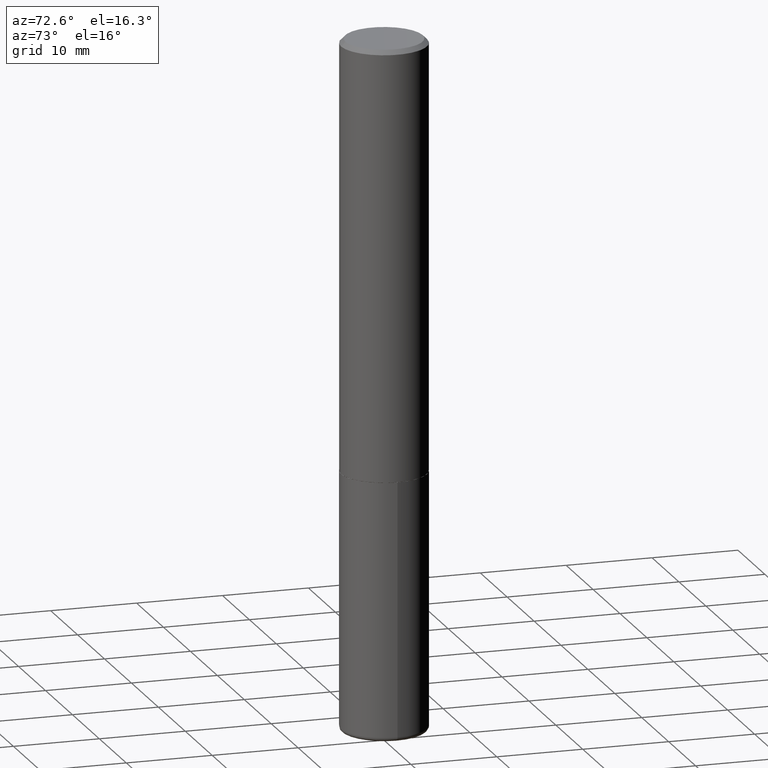
[diagram: clean part render]
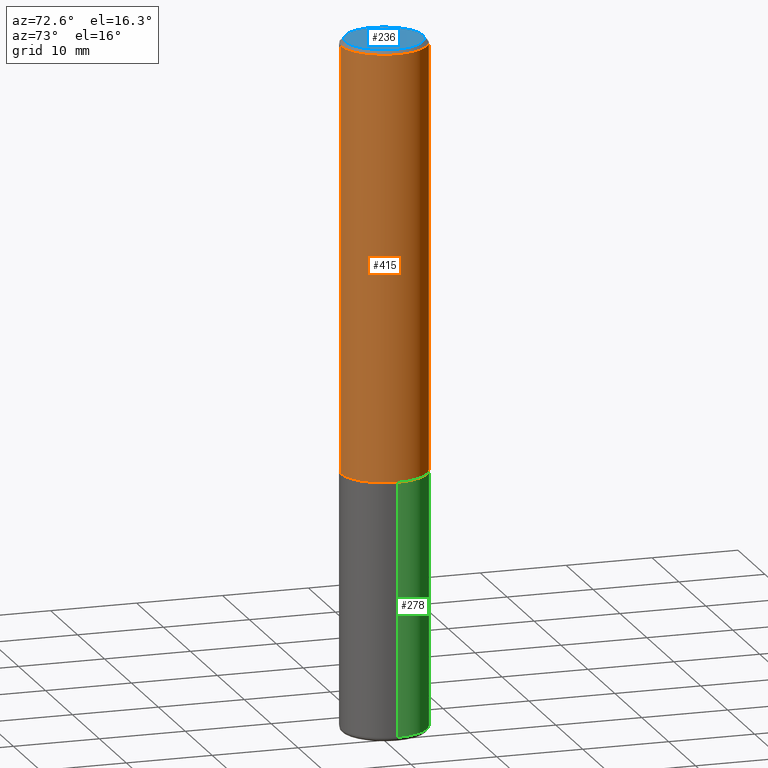
[diagram: same view with three faces highlighted in distinct colors, each labeled with its STEP entity id]
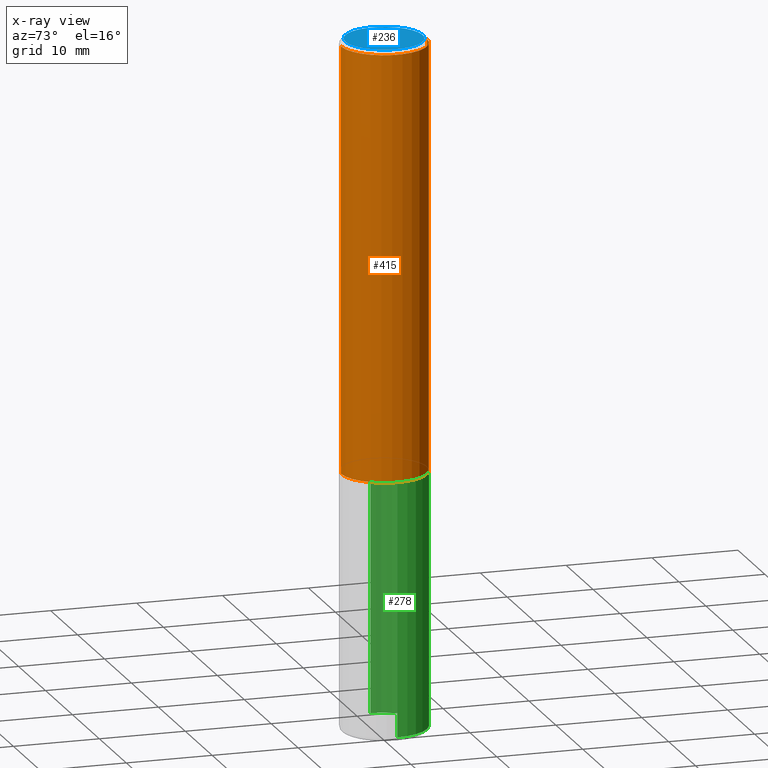
[diagram: x-ray of the same camera — body ghosted, the three highlighted faces saturated]
A machine part, auxiliary view with three faces highlighted in distinct colors.
The next image is the same camera in x-ray (body ghosted, the three faces saturated) — at least one of them is partly hidden behind the body in this view.
Their STEP definitions:

[orange] entity #415 — the highlighted cylindrical surface (partial cylindrical patch) has radius 5 mm, axis along (-0, 0, 1).
#23 = EDGE_LOOP ( 'NONE', ( #84, #398, #314, #44 ) ) ;
#36 = VERTEX_POINT ( 'NONE', #138 ) ;
#39 = DIRECTION ( 'NONE',  ( -2.445268841296851437E-29, 3.491767699944464940E-15, 1.000000000000000000 ) ) ;
#43 = FACE_OUTER_BOUND ( 'NONE', #23, .T. ) ;
#44 = ORIENTED_EDGE ( 'NONE', *, *, #93, .F. ) ;
#47 = CIRCLE ( 'NONE', #319, 0.1968500000000002470 ) ;
#55 = CARTESIAN_POINT ( 'NONE',  ( 1.398703375343782440E-15, 0.1968499999999933914, -1.967500000000000471 ) ) ;
#83 = DIRECTION ( 'NONE',  ( -6.982962677686265922E-15, -1.000000000000000000, 3.491767699944464545E-15 ) ) ;
#84 = ORIENTED_EDGE ( 'NONE', *, *, #262, .T. ) ;
#93 = EDGE_CURVE ( 'NONE', #36, #310, #239, .T. ) ;
#101 = VERTEX_POINT ( 'NONE', #121 ) ;
#117 = VERTEX_POINT ( 'NONE', #55 ) ;
#121 = CARTESIAN_POINT ( 'NONE',  ( 1.374596203102542200E-15, 0.1968499999999999694, -0.02000000000000072900 ) ) ;
#133 = DIRECTION ( 'NONE',  ( -6.982962677686265133E-15, -1.000000000000000000, 3.491137977679279029E-15 ) ) ;
#138 = CARTESIAN_POINT ( 'NONE',  ( -1.374596203102495065E-15, -0.1968500000000071026, -1.967499999999998916 ) ) ;
#146 = CARTESIAN_POINT ( 'NONE',  ( 0.000000000000000000, 0.000000000000000000, 0.000000000000000000 ) ) ;
#150 = VECTOR ( 'NONE', #39, 39.37007874015748143 ) ;
#158 = DIRECTION ( 'NONE',  ( -6.982962677686265922E-15, -1.000000000000000000, 4.163344669033670112E-15 ) ) ;
#175 = CYLINDRICAL_SURFACE ( 'NONE', #225, 0.1968500000000001360 ) ;
#183 = EDGE_CURVE ( 'NONE', #117, #101, #301, .T. ) ;
#186 = DIRECTION ( 'NONE',  ( -2.445268841296851437E-29, 3.491767699944464545E-15, 1.000000000000000000 ) ) ;
#194 = CIRCLE ( 'NONE', #248, 0.1968500000000000527 ) ;
#202 = DIRECTION ( 'NONE',  ( -2.445268841296851437E-29, 3.491767699944464545E-15, 1.000000000000000000 ) ) ;
#217 = CARTESIAN_POINT ( 'NONE',  ( -1.350489030861325626E-15, -0.1968500000000001082, -0.01999999999999935510 ) ) ;
#225 = AXIS2_PLACEMENT_3D ( 'NONE', #146, #305, #83 ) ;
#239 = LINE ( 'NONE', #326, #150 ) ;
#248 = AXIS2_PLACEMENT_3D ( 'NONE', #279, #186, #133 ) ;
#262 = EDGE_CURVE ( 'NONE', #36, #117, #47, .T. ) ;
#279 = CARTESIAN_POINT ( 'NONE',  ( 4.890537682593712927E-31, -6.983535399888942699E-17, -0.02000000000000004205 ) ) ;
#297 = CARTESIAN_POINT ( 'NONE',  ( 1.398703375343757985E-15, 0.1968500000000001360, -6.873544717340683232E-16 ) ) ;
#301 = LINE ( 'NONE', #297, #312 ) ;
#305 = DIRECTION ( 'NONE',  ( -2.445268841296851437E-29, 3.491767699944464545E-15, 1.000000000000000000 ) ) ;
#310 = VERTEX_POINT ( 'NONE', #217 ) ;
#312 = VECTOR ( 'NONE', #394, 39.37007874015748143 ) ;
#314 = ORIENTED_EDGE ( 'NONE', *, *, #327, .F. ) ;
#319 = AXIS2_PLACEMENT_3D ( 'NONE', #338, #202, #158 ) ;
#326 = CARTESIAN_POINT ( 'NONE',  ( -1.374596203102542397E-15, -0.1968500000000001360, 6.873544717340683232E-16 ) ) ;
#327 = EDGE_CURVE ( 'NONE', #310, #101, #194, .T. ) ;
#338 = CARTESIAN_POINT ( 'NONE',  ( 4.811066445251554069E-29, -6.870052949640732965E-15, -1.967499999999999805 ) ) ;
#394 = DIRECTION ( 'NONE',  ( -2.445268841296851437E-29, 3.491767699944464940E-15, 1.000000000000000000 ) ) ;
#398 = ORIENTED_EDGE ( 'NONE', *, *, #183, .T. ) ;
#415 = ADVANCED_FACE ( 'NONE', ( #43 ), #175, .T. ) ;

[blue] entity #236 — the highlighted planar face has unit normal (0, -0, -1).
#3 = DIRECTION ( 'NONE',  ( -6.982962677686265922E-15, -1.000000000000000000, 3.491767699944464940E-15 ) ) ;
#45 = EDGE_CURVE ( 'NONE', #157, #170, #81, .T. ) ;
#78 = ORIENTED_EDGE ( 'NONE', *, *, #132, .T. ) ;
#81 = CIRCLE ( 'NONE', #134, 0.1768499999999998407 ) ;
#94 = CARTESIAN_POINT ( 'NONE',  ( -5.428821863719041386E-45, 7.752188435212310874E-31, 2.220132924459896583E-16 ) ) ;
#99 = DIRECTION ( 'NONE',  ( -2.445268841296851437E-29, 3.491767699944464545E-15, 1.000000000000000000 ) ) ;
#113 = AXIS2_PLACEMENT_3D ( 'NONE', #115, #374, #294 ) ;
#115 = CARTESIAN_POINT ( 'NONE',  ( 1.234936949548815012E-15, 0.1768499999999998407, -5.065124715121833152E-16 ) ) ;
#125 = CIRCLE ( 'NONE', #361, 0.1768499999999998407 ) ;
#132 = EDGE_CURVE ( 'NONE', #170, #157, #125, .T. ) ;
#134 = AXIS2_PLACEMENT_3D ( 'NONE', #166, #363, #3 ) ;
#157 = VERTEX_POINT ( 'NONE', #416 ) ;
#166 = CARTESIAN_POINT ( 'NONE',  ( -5.428821863719041386E-45, 7.752188435212310874E-31, 2.220132924459896583E-16 ) ) ;
#170 = VERTEX_POINT ( 'NONE', #171 ) ;
#171 = CARTESIAN_POINT ( 'NONE',  ( -1.281884050883609900E-15, -0.1768499999999998407, 8.395324101811677409E-16 ) ) ;
#236 = ADVANCED_FACE ( 'NONE', ( #264 ), #360, .F. ) ;
#257 = DIRECTION ( 'NONE',  ( -6.982962677686265922E-15, -1.000000000000000000, 3.491767699944464940E-15 ) ) ;
#261 = ORIENTED_EDGE ( 'NONE', *, *, #45, .T. ) ;
#264 = FACE_OUTER_BOUND ( 'NONE', #269, .T. ) ;
#269 = EDGE_LOOP ( 'NONE', ( #261, #78 ) ) ;
#294 = DIRECTION ( 'NONE',  ( 6.982962677686265922E-15, 1.000000000000000000, -3.491767699944464940E-15 ) ) ;
#360 = PLANE ( 'NONE',  #113 ) ;
#361 = AXIS2_PLACEMENT_3D ( 'NONE', #94, #99, #257 ) ;
#363 = DIRECTION ( 'NONE',  ( -2.445268841296851437E-29, 3.491767699944464545E-15, 1.000000000000000000 ) ) ;
#374 = DIRECTION ( 'NONE',  ( 2.445268841296850876E-29, -3.491767699944464940E-15, -1.000000000000000000 ) ) ;
#416 = CARTESIAN_POINT ( 'NONE',  ( 1.304766576325678705E-15, 0.1768499999999998407, -3.955058252891884244E-16 ) ) ;

[green] entity #278 — the highlighted cylindrical surface (partial cylindrical patch) has radius 5 mm, axis along (-0, 0, 1).
#21 = VECTOR ( 'NONE', #109, 39.37007874015748143 ) ;
#27 = EDGE_CURVE ( 'NONE', #190, #381, #357, .T. ) ;
#30 = CARTESIAN_POINT ( 'NONE',  ( 0.000000000000000000, 0.000000000000000000, 0.000000000000000000 ) ) ;
#34 = CIRCLE ( 'NONE', #288, 0.1968500000000000250 ) ;
#41 = ORIENTED_EDGE ( 'NONE', *, *, #184, .F. ) ;
#56 = VERTEX_POINT ( 'NONE', #298 ) ;
#63 = FACE_OUTER_BOUND ( 'NONE', #259, .T. ) ;
#71 = DIRECTION ( 'NONE',  ( 1.000000000000000000, -6.982962677686266711E-15, 4.876176775795935793E-29 ) ) ;
#75 = DIRECTION ( 'NONE',  ( 1.000000000000000000, -6.982962677686267499E-15, 0.000000000000000000 ) ) ;
#89 = AXIS2_PLACEMENT_3D ( 'NONE', #30, #137, #71 ) ;
#108 = LINE ( 'NONE', #388, #253 ) ;
#109 = DIRECTION ( 'NONE',  ( -2.445468806185136877E-29, 3.491481338843145188E-15, 1.000000000000000000 ) ) ;
#112 = CIRCLE ( 'NONE', #193, 0.1968499999999999694 ) ;
#137 = DIRECTION ( 'NONE',  ( -2.445468806185136597E-29, 3.491481338843145583E-15, 1.000000000000000000 ) ) ;
#139 = ORIENTED_EDGE ( 'NONE', *, *, #27, .T. ) ;
#148 = EDGE_CURVE ( 'NONE', #56, #190, #112, .T. ) ;
#182 = CARTESIAN_POINT ( 'NONE',  ( 0.1968500000000000250, -8.247577218615273316E-15, -1.968499999999999694 ) ) ;
#184 = EDGE_CURVE ( 'NONE', #56, #325, #108, .T. ) ;
#190 = VERTEX_POINT ( 'NONE', #233 ) ;
#191 = DIRECTION ( 'NONE',  ( 1.000000000000000000, -6.982962677686269866E-15, 0.000000000000000000 ) ) ;
#193 = AXIS2_PLACEMENT_3D ( 'NONE', #351, #221, #191 ) ;
#209 = CARTESIAN_POINT ( 'NONE',  ( -0.1968499999999999694, 1.398703375343756999E-15, -9.682923725166782276E-30 ) ) ;
#221 = DIRECTION ( 'NONE',  ( -2.445468806185136597E-29, 3.491481338843145583E-15, 1.000000000000000000 ) ) ;
#222 = EDGE_CURVE ( 'NONE', #325, #381, #34, .T. ) ;
#229 = CARTESIAN_POINT ( 'NONE',  ( -0.1968500000000000250, -7.501780853635190206E-15, -1.968499999999999694 ) ) ;
#233 = CARTESIAN_POINT ( 'NONE',  ( -0.1968499999999999417, -9.529284067101404126E-15, -3.129900000000000571 ) ) ;
#253 = VECTOR ( 'NONE', #392, 39.37007874015748143 ) ;
#259 = EDGE_LOOP ( 'NONE', ( #336, #139, #316, #41 ) ) ;
#272 = CARTESIAN_POINT ( 'NONE',  ( 4.813905344975440714E-29, -6.872981015512730918E-15, -1.968499999999999694 ) ) ;
#278 = ADVANCED_FACE ( 'NONE', ( #63 ), #321, .T. ) ;
#288 = AXIS2_PLACEMENT_3D ( 'NONE', #272, #323, #75 ) ;
#298 = CARTESIAN_POINT ( 'NONE',  ( 0.1968499999999999417, -1.230258364554770273E-14, -3.129900000000000571 ) ) ;
#316 = ORIENTED_EDGE ( 'NONE', *, *, #222, .F. ) ;
#321 = CYLINDRICAL_SURFACE ( 'NONE', #89, 0.1968499999999999694 ) ;
#323 = DIRECTION ( 'NONE',  ( -2.445468806185136597E-29, 3.491481338843145583E-15, 1.000000000000000000 ) ) ;
#325 = VERTEX_POINT ( 'NONE', #182 ) ;
#336 = ORIENTED_EDGE ( 'NONE', *, *, #148, .T. ) ;
#351 = CARTESIAN_POINT ( 'NONE',  ( 7.654072816478859974E-29, -1.092798744244516270E-14, -3.129900000000000571 ) ) ;
#357 = LINE ( 'NONE', #209, #21 ) ;
#381 = VERTEX_POINT ( 'NONE', #229 ) ;
#388 = CARTESIAN_POINT ( 'NONE',  ( 0.1968499999999999694, -1.374596203102541411E-15, 9.598753983154298056E-30 ) ) ;
#392 = DIRECTION ( 'NONE',  ( -2.445468806185136877E-29, 3.491481338843145188E-15, 1.000000000000000000 ) ) ;